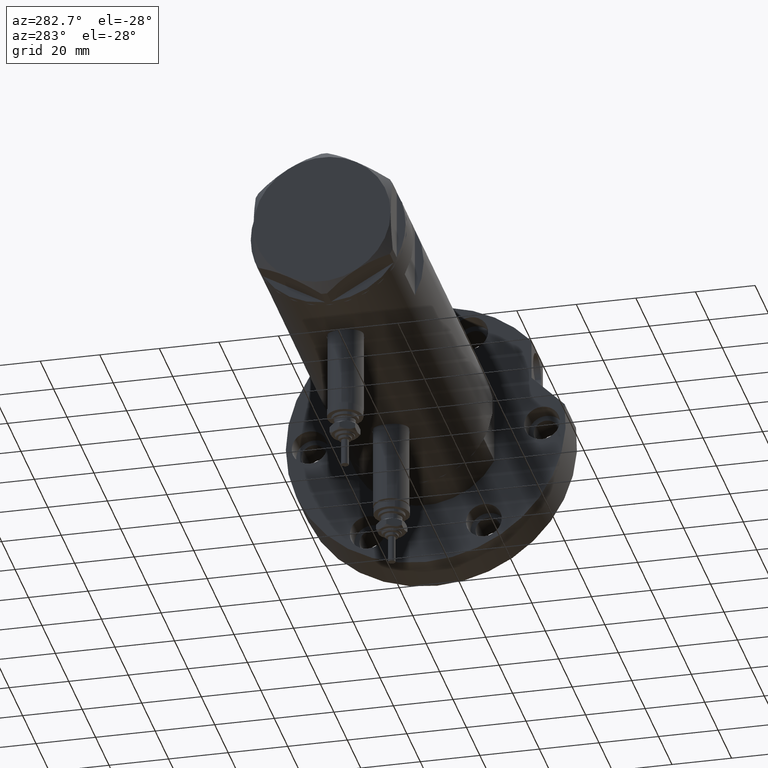
[diagram: clean part render]
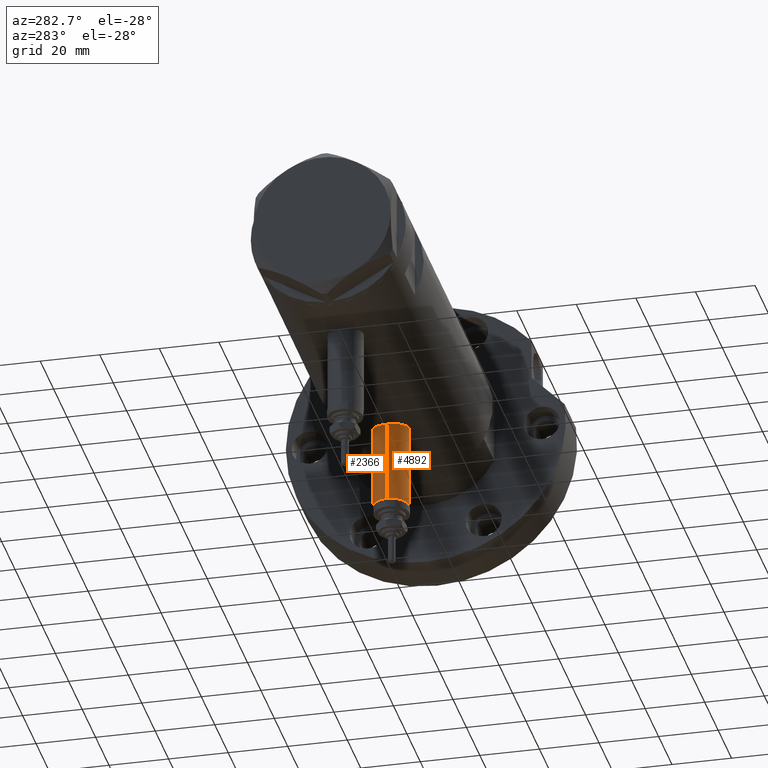
[diagram: same view with one multi-face feature highlighted, each face labeled with its STEP entity id]
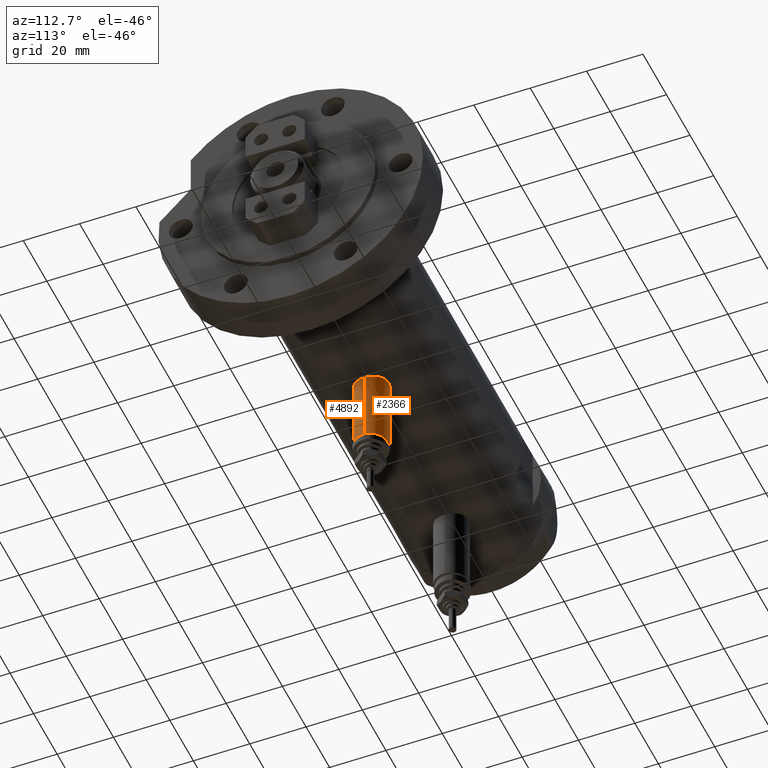
[diagram: same view with one multi-face feature highlighted, each face labeled with its STEP entity id]
A machine part, auxiliary view. The highlighted faces form ONE feature: a constant-radius fillet chain: 2 tangent blend faces with common blend radius 6 mm. The faces share edges in the B-rep.
A second angle (auxiliary view) of the same feature is appended — it is thin or edge-on in the first view.
Their STEP definitions:
[1] entity #2366 (Cylinder):
#357 = DIRECTION ( 'NONE',  ( 1.000000000000000000, -0.000000000000000000, -0.000000000000000000 ) ) ;
#1122 = ORIENTED_EDGE ( 'NONE', *, *, #5982, .F. ) ;
#1275 = CARTESIAN_POINT ( 'NONE',  ( -24.80000000000000426, 7.347880794884123680E-16, -21.65000000000000213 ) ) ;
#1355 = CIRCLE ( 'NONE', #4014, 6.000000000000001776 ) ;
#1640 = CARTESIAN_POINT ( 'NONE',  ( -53.40000000000000568, 7.347880794884122694E-16, -21.65000000000000568 ) ) ;
#1721 = ORIENTED_EDGE ( 'NONE', *, *, #2100, .T. ) ;
#1859 = AXIS2_PLACEMENT_3D ( 'NONE', #7568, #2377, #5063 ) ;
#2100 = EDGE_CURVE ( 'NONE', #7005, #8393, #3683, .T. ) ;
#2102 = CARTESIAN_POINT ( 'NONE',  ( -53.40000000000000568, 0.000000000000000000, -27.65000000000000924 ) ) ;
#2193 = VERTEX_POINT ( 'NONE', #2420 ) ;
#2286 = LINE ( 'NONE', #8352, #5824 ) ;
#2366 = ADVANCED_FACE ( 'NONE', ( #4036 ), #6860, .T. ) ;
#2377 = DIRECTION ( 'NONE',  ( -1.000000000000000000, 0.000000000000000000, 0.000000000000000000 ) ) ;
#2420 = CARTESIAN_POINT ( 'NONE',  ( -53.40000000000000568, 7.347880794884123680E-16, -21.65000000000000213 ) ) ;
#3289 = EDGE_CURVE ( 'NONE', #2193, #7005, #5111, .T. ) ;
#3399 = VECTOR ( 'NONE', #3782, 1000.000000000000000 ) ;
#3683 = CIRCLE ( 'NONE', #1859, 6.000000000000001776 ) ;
#3782 = DIRECTION ( 'NONE',  ( 1.000000000000000000, -0.000000000000000000, -0.000000000000000000 ) ) ;
#4014 = AXIS2_PLACEMENT_3D ( 'NONE', #6364, #8200, #7628 ) ;
#4036 = FACE_OUTER_BOUND ( 'NONE', #8654, .T. ) ;
#4747 = DIRECTION ( 'NONE',  ( 0.000000000000000000, 0.000000000000000000, -1.000000000000000000 ) ) ;
#4750 = ORIENTED_EDGE ( 'NONE', *, *, #8065, .F. ) ;
#5063 = DIRECTION ( 'NONE',  ( 0.000000000000000000, 0.000000000000000000, 1.000000000000000000 ) ) ;
#5111 = LINE ( 'NONE', #1640, #3399 ) ;
#5282 = CARTESIAN_POINT ( 'NONE',  ( -24.80000000000000426, 0.000000000000000000, -33.65000000000001279 ) ) ;
#5411 = DIRECTION ( 'NONE',  ( 1.000000000000000000, -0.000000000000000000, -0.000000000000000000 ) ) ;
#5824 = VECTOR ( 'NONE', #357, 1000.000000000000000 ) ;
#5982 = EDGE_CURVE ( 'NONE', #6483, #8393, #2286, .T. ) ;
#6364 = CARTESIAN_POINT ( 'NONE',  ( -53.40000000000000568, 0.000000000000000000, -27.65000000000000924 ) ) ;
#6483 = VERTEX_POINT ( 'NONE', #8624 ) ;
#6631 = ORIENTED_EDGE ( 'NONE', *, *, #3289, .T. ) ;
#6860 = CYLINDRICAL_SURFACE ( 'NONE', #8576, 6.000000000000005329 ) ;
#7005 = VERTEX_POINT ( 'NONE', #1275 ) ;
#7568 = CARTESIAN_POINT ( 'NONE',  ( -24.80000000000000426, 0.000000000000000000, -27.65000000000000924 ) ) ;
#7628 = DIRECTION ( 'NONE',  ( 0.000000000000000000, 0.000000000000000000, 1.000000000000000000 ) ) ;
#8065 = EDGE_CURVE ( 'NONE', #2193, #6483, #1355, .T. ) ;
#8200 = DIRECTION ( 'NONE',  ( -1.000000000000000000, 0.000000000000000000, 0.000000000000000000 ) ) ;
#8352 = CARTESIAN_POINT ( 'NONE',  ( -53.40000000000000568, 0.000000000000000000, -33.65000000000001279 ) ) ;
#8393 = VERTEX_POINT ( 'NONE', #5282 ) ;
#8576 = AXIS2_PLACEMENT_3D ( 'NONE', #2102, #5411, #4747 ) ;
#8624 = CARTESIAN_POINT ( 'NONE',  ( -53.40000000000000568, 0.000000000000000000, -33.65000000000001279 ) ) ;
#8654 = EDGE_LOOP ( 'NONE', ( #4750, #6631, #1721, #1122 ) ) ;
[2] entity #4892 (Cylinder):
#211 = DIRECTION ( 'NONE',  ( 0.000000000000000000, 0.000000000000000000, 1.000000000000000000 ) ) ;
#338 = CIRCLE ( 'NONE', #2574, 6.000000000000001776 ) ;
#357 = DIRECTION ( 'NONE',  ( 1.000000000000000000, -0.000000000000000000, -0.000000000000000000 ) ) ;
#641 = CARTESIAN_POINT ( 'NONE',  ( -24.80000000000000426, 0.000000000000000000, -27.65000000000000924 ) ) ;
#821 = CARTESIAN_POINT ( 'NONE',  ( -53.40000000000000568, 0.000000000000000000, -27.65000000000000924 ) ) ;
#863 = DIRECTION ( 'NONE',  ( 1.000000000000000000, -0.000000000000000000, -0.000000000000000000 ) ) ;
#957 = CYLINDRICAL_SURFACE ( 'NONE', #1451, 6.000000000000005329 ) ;
#1275 = CARTESIAN_POINT ( 'NONE',  ( -24.80000000000000426, 7.347880794884123680E-16, -21.65000000000000213 ) ) ;
#1295 = DIRECTION ( 'NONE',  ( -1.000000000000000000, 0.000000000000000000, 0.000000000000000000 ) ) ;
#1357 = DIRECTION ( 'NONE',  ( 0.000000000000000000, 0.000000000000000000, -1.000000000000000000 ) ) ;
#1451 = AXIS2_PLACEMENT_3D ( 'NONE', #821, #863, #1357 ) ;
#1640 = CARTESIAN_POINT ( 'NONE',  ( -53.40000000000000568, 7.347880794884122694E-16, -21.65000000000000568 ) ) ;
#1972 = FACE_OUTER_BOUND ( 'NONE', #3178, .T. ) ;
#2193 = VERTEX_POINT ( 'NONE', #2420 ) ;
#2278 = CIRCLE ( 'NONE', #2546, 6.000000000000001776 ) ;
#2286 = LINE ( 'NONE', #8352, #5824 ) ;
#2420 = CARTESIAN_POINT ( 'NONE',  ( -53.40000000000000568, 7.347880794884123680E-16, -21.65000000000000213 ) ) ;
#2546 = AXIS2_PLACEMENT_3D ( 'NONE', #3543, #7548, #211 ) ;
#2574 = AXIS2_PLACEMENT_3D ( 'NONE', #641, #1295, #8550 ) ;
#2858 = EDGE_CURVE ( 'NONE', #6483, #2193, #2278, .T. ) ;
#3178 = EDGE_LOOP ( 'NONE', ( #5167, #4572, #8358, #3632 ) ) ;
#3289 = EDGE_CURVE ( 'NONE', #2193, #7005, #5111, .T. ) ;
#3399 = VECTOR ( 'NONE', #3782, 1000.000000000000000 ) ;
#3543 = CARTESIAN_POINT ( 'NONE',  ( -53.40000000000000568, 0.000000000000000000, -27.65000000000000924 ) ) ;
#3632 = ORIENTED_EDGE ( 'NONE', *, *, #5126, .T. ) ;
#3782 = DIRECTION ( 'NONE',  ( 1.000000000000000000, -0.000000000000000000, -0.000000000000000000 ) ) ;
#4572 = ORIENTED_EDGE ( 'NONE', *, *, #2858, .F. ) ;
#4892 = ADVANCED_FACE ( 'NONE', ( #1972 ), #957, .T. ) ;
#5111 = LINE ( 'NONE', #1640, #3399 ) ;
#5126 = EDGE_CURVE ( 'NONE', #8393, #7005, #338, .T. ) ;
#5167 = ORIENTED_EDGE ( 'NONE', *, *, #3289, .F. ) ;
#5282 = CARTESIAN_POINT ( 'NONE',  ( -24.80000000000000426, 0.000000000000000000, -33.65000000000001279 ) ) ;
#5824 = VECTOR ( 'NONE', #357, 1000.000000000000000 ) ;
#5982 = EDGE_CURVE ( 'NONE', #6483, #8393, #2286, .T. ) ;
#6483 = VERTEX_POINT ( 'NONE', #8624 ) ;
#7005 = VERTEX_POINT ( 'NONE', #1275 ) ;
#7548 = DIRECTION ( 'NONE',  ( -1.000000000000000000, 0.000000000000000000, 0.000000000000000000 ) ) ;
#8352 = CARTESIAN_POINT ( 'NONE',  ( -53.40000000000000568, 0.000000000000000000, -33.65000000000001279 ) ) ;
#8358 = ORIENTED_EDGE ( 'NONE', *, *, #5982, .T. ) ;
#8393 = VERTEX_POINT ( 'NONE', #5282 ) ;
#8550 = DIRECTION ( 'NONE',  ( 0.000000000000000000, 0.000000000000000000, 1.000000000000000000 ) ) ;
#8624 = CARTESIAN_POINT ( 'NONE',  ( -53.40000000000000568, 0.000000000000000000, -33.65000000000001279 ) ) ;